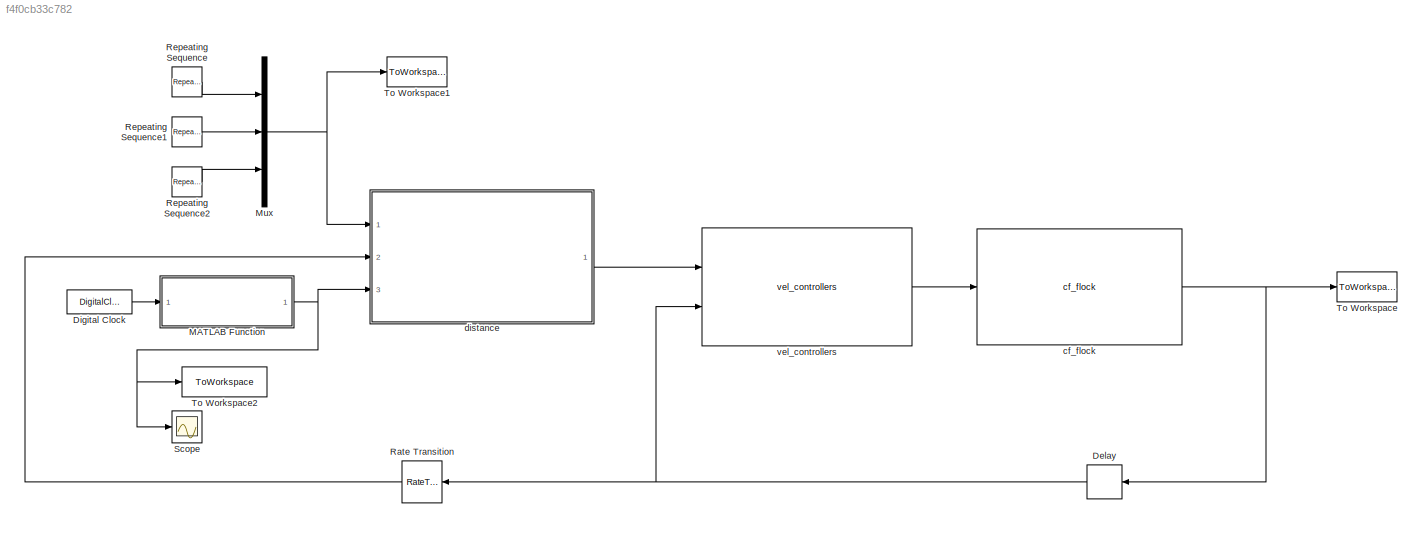
MODEL slx_f4f0cb33c782
KIND model
CONFIG AbsTol = auto
CONFIG EnableMultiTasking = off
CONFIG FixedStep = continuous_h
CONFIG MaxStep = auto
CONFIG MinStep = auto
CONFIG RelTol = 1e-3
CONFIG SampleTimeConstraint = Unconstrained
CONFIG Solver = FixedStepAuto
CONFIG SolverName = FixedStepAuto
CONFIG StartTime = 0.0
CONFIG StopFcn = plot3_state\n
CONFIG StopTime = 10
BLOCK [Delay] Delay
  DelayLength = 1
  InputPortMap = u0
  Ports = [1, 1]
BLOCK [DigitalClock] Digital Clock
  SampleTime = continuous_h
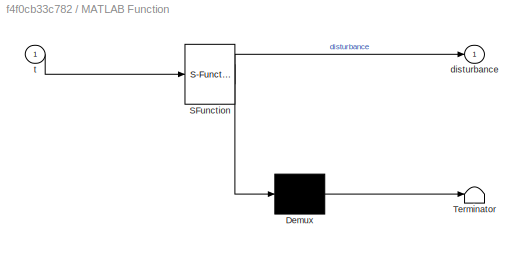
BLOCK [SubSystem] MATLAB Function
  ErrorFcn = Stateflow.Translate.translate
  PermitHierarchicalResolution = ExplicitOnly
  Ports = [1, 1]
  RequestExecContextInheritance = off
  SFBlockType = MATLAB Function
  TreatAsAtomicUnit = on
BLOCK [Demux] MATLAB Function/ Demux 
  Outputs = 1
  Ports = [1, 1]
BLOCK [S-Function] MATLAB Function/ SFunction 
  EnableBusSupport = on
  FunctionName = sf_sfun
  Parameters = disturbances
  PortCounts = [1 2]
  Ports = [1, 2]
  SFcnIsStateOwnerBlock = off
  SFunctionDeploymentMode = off
  Tag = Stateflow S-Function distance_controller 1
BLOCK [Terminator] MATLAB Function/ Terminator 
BLOCK [Outport] MATLAB Function/disturbance
  IconDisplay = Port number
BLOCK [Inport] MATLAB Function/t
  IconDisplay = Port number
BLOCK [Mux] Mux
  DisplayOption = bar
  Inputs = 3
  Ports = [3, 1]
BLOCK [RateTransition] Rate Transition
  OutPortSampleTime = 0.05
BLOCK [Reference] Repeating Sequence  REF=simulink/Sources/Repeating
Sequence
  Ports = [0, 1]
  SourceBlock = simulink/Sources/Repeating\nSequence
  SourceProductBaseCode = SL
  SourceProductName = Simulink
  SourceType = Repeating table
BLOCK [Reference] Repeating Sequence1  REF=simulink/Sources/Repeating
Sequence
  Ports = [0, 1]
  SourceBlock = simulink/Sources/Repeating\nSequence
  SourceProductBaseCode = SL
  SourceProductName = Simulink
  SourceType = Repeating table
BLOCK [Reference] Repeating Sequence2  REF=simulink/Sources/Repeating
Sequence
  Ports = [0, 1]
  SourceBlock = simulink/Sources/Repeating\nSequence
  SourceProductBaseCode = SL
  SourceProductName = Simulink
  SourceType = Repeating table
BLOCK [Scope] Scope
  Floating = off
  NumInputPorts = 1
  Ports = [1]
  ScopeSpecificationString = Simulink.scopes.TimeScopeBlockCfg('CurrentConfiguration', extmgr.ConfigurationSet(extmgr.Configuration('Core','General UI',true),extmgr.Configuration('Core','Source UI',true),extmgr.Configuration('Sources','WiredSimulink',true),extmgr.Configuration('Visuals','Time Domain',true,'SerializedDisplays',{struct('MinYLimReal','-9.87299','MaxYLimReal','10.43226','YLabelReal','','MinYLimMag','0.00000','Max...<+1420ch>
BLOCK [ToWorkspace] To Workspace
  FixptAsFi = on
  MaxDataPoints = inf
  Ports = [1]
  SampleTime = -1
  Save2DSignal = 3-D array (concatenate along third dimension)
  SaveFormat = Timeseries
  VariableName = state
BLOCK [ToWorkspace] To Workspace1
  FixptAsFi = on
  MaxDataPoints = inf
  Ports = [1]
  SampleTime = continuous_h
  Save2DSignal = 3-D array (concatenate along third dimension)
  SaveFormat = Timeseries
  VariableName = ref
BLOCK [ToWorkspace] To Workspace2
  FixptAsFi = on
  MaxDataPoints = inf
  Ports = [1]
  SampleTime = -1
  Save2DSignal = 3-D array (concatenate along third dimension)
  SaveFormat = Timeseries
  VariableName = disturbances_real
BLOCK [Reference] cf_flock  REF=cf_lib/cf_flock  (lib defined in slx_a8dafeb2bc56)
  Ports = [1, 1]
  SourceBlock = cf_lib/cf_flock
  SourceType = SubSystem
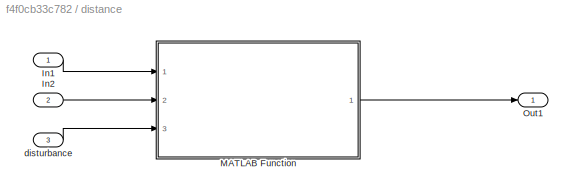
BLOCK [SubSystem] distance
  Ports = [3, 1]
  RequestExecContextInheritance = off
BLOCK [Inport] distance/In1
  IconDisplay = Port number
BLOCK [Inport] distance/In2
  IconDisplay = Port number
  Port = 2
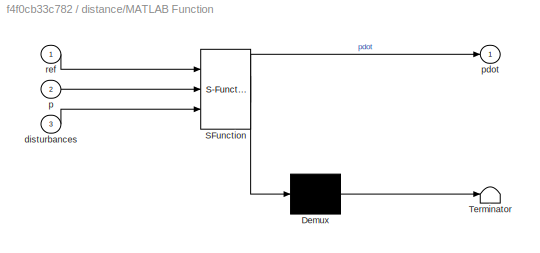
BLOCK [SubSystem] distance/MATLAB Function
  ErrorFcn = Stateflow.Translate.translate
  PermitHierarchicalResolution = ExplicitOnly
  Ports = [3, 1]
  RequestExecContextInheritance = off
  SFBlockType = MATLAB Function
  SystemSampleTime = distc_params.h
  TreatAsAtomicUnit = on
BLOCK [Demux] distance/MATLAB Function/ Demux 
  Outputs = 1
  Ports = [1, 1]
BLOCK [S-Function] distance/MATLAB Function/ SFunction 
  EnableBusSupport = on
  FunctionName = sf_sfun
  Parameters = distc_params
  PortCounts = [3 2]
  Ports = [3, 2]
  SFcnIsStateOwnerBlock = off
  SFunctionDeploymentMode = off
  Tag = Stateflow S-Function distance_controller 2
BLOCK [Terminator] distance/MATLAB Function/ Terminator 
BLOCK [Inport] distance/MATLAB Function/disturbances
  IconDisplay = Port number
  Port = 3
BLOCK [Inport] distance/MATLAB Function/p
  IconDisplay = Port number
  Port = 2
BLOCK [Outport] distance/MATLAB Function/pdot
  IconDisplay = Port number
BLOCK [Inport] distance/MATLAB Function/ref
  IconDisplay = Port number
BLOCK [Outport] distance/Out1
  IconDisplay = Port number
BLOCK [Inport] distance/disturbance
  IconDisplay = Port number
  Port = 3
BLOCK [Reference] vel_controllers  REF=vel_controller_lib/vel_controllers  (lib defined in slx_bda01cb8c3d0)
  Ports = [2, 1]
  SourceBlock = vel_controller_lib/vel_controllers
  SourceType = SubSystem
NET Delay:1 -> Rate Transition:1, vel_controllers:2
LINE Digital Clock:1 -> MATLAB Function:1
NET MATLAB Function:1 -> Scope:1, To Workspace2:1, distance:3
NET Mux:1 -> To Workspace1:1, distance:1
LINE Rate Transition:1 -> distance:2
LINE Repeating Sequence1:1 -> Mux:2
LINE Repeating Sequence2:1 -> Mux:3
LINE Repeating Sequence:1 -> Mux:1
NET cf_flock:1 -> Delay:1, To Workspace:1
LINE distance/In1:1 -> distance/MATLAB Function:1
LINE distance/In2:1 -> distance/MATLAB Function:2
LINE distance/MATLAB Function:1 -> distance/Out1:1
LINE distance/disturbance:1 -> distance/MATLAB Function:3
LINE distance:1 -> vel_controllers:1
LINE vel_controllers:1 -> cf_flock:1
note: NET lines group one-source signal fan-out (src -> all destinations, sorted); 1:1 wires keep LINE
CHART MATLAB Function states=1 transitions=1
  STATE_LABEL 'eML_blk_kernel()'
  STATE_LABEL 'SCRIPT:\nfunction disturbance = dynamic_disturbance(t, disturbances)\ndisturbance = disturbances;\ndisturbance(3,1) = disturbances(3,1) - 49.6 + 30*t - 9.82*t^2/2;\ndisturbance(1,1) = disturbances(1,1) - 3 + 1*t;\n'
CHART distance/MATLAB Function states=1 transitions=1
  STATE_LABEL 'eML_blk_kernel()'
  STATE_LABEL "SCRIPT:\nfunction pdot = distance_controller(ref,p,distc_params,disturbances)\n% Calculate velocity vector pdot, from equation 4.4 in Zhiyong's\n% thesis. Includes formation control as well as trajectory control\npersistent integ prev_e_swarm;\n\nif isempty(integ)\n    integ = [0;0;0];\nend\nif isempty(prev_e_swarm)\n    prev_e_swarm = [0;0;0];\nend\n\np = p(1:3,:);\n[~,c] = size(p);\npdot=zeros(size(p));\np_swar...<+1149ch>"
